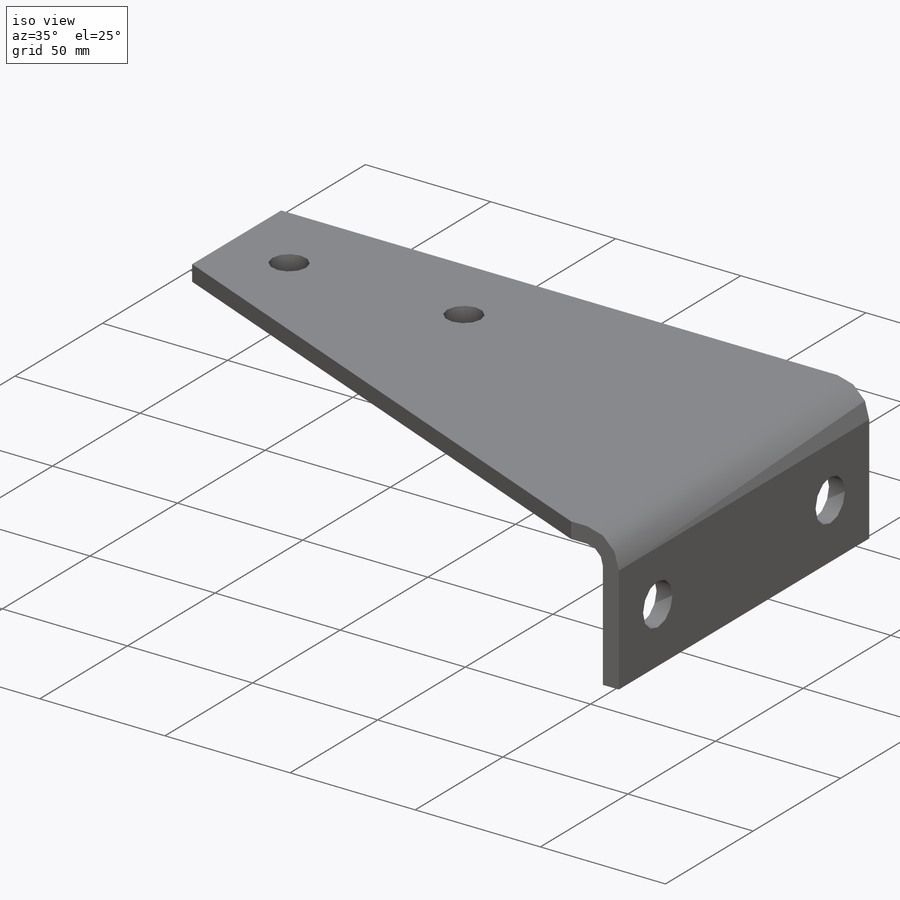
[diagram: iso view]
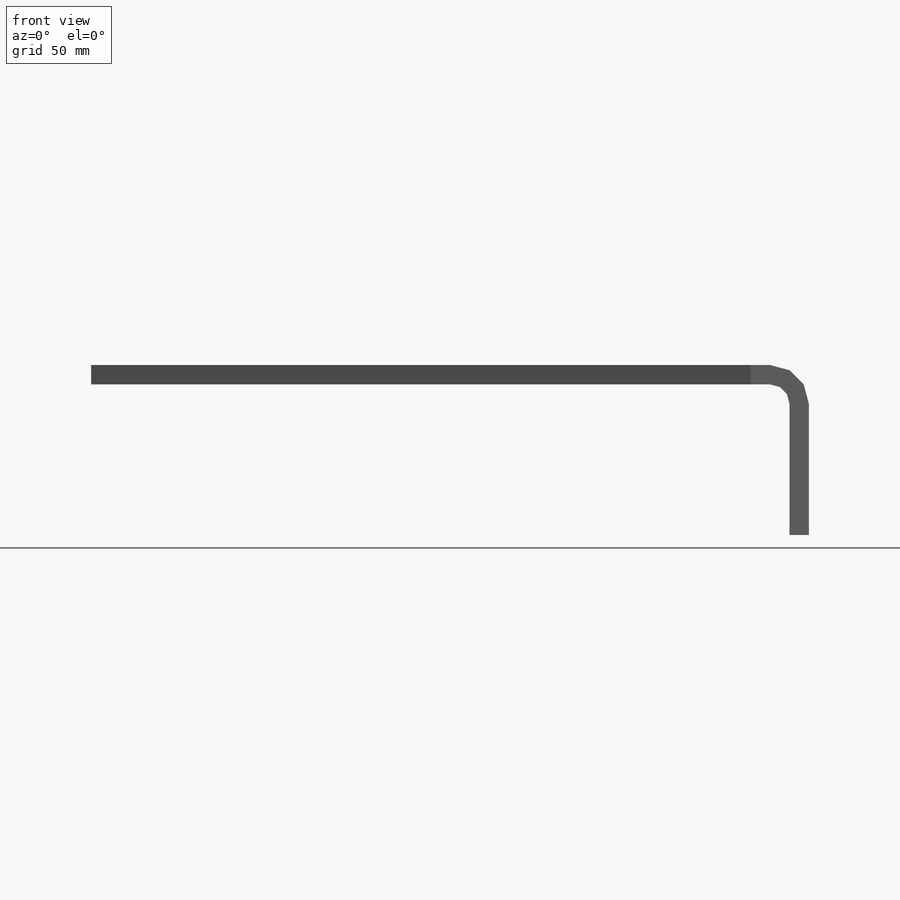
[diagram: front view]
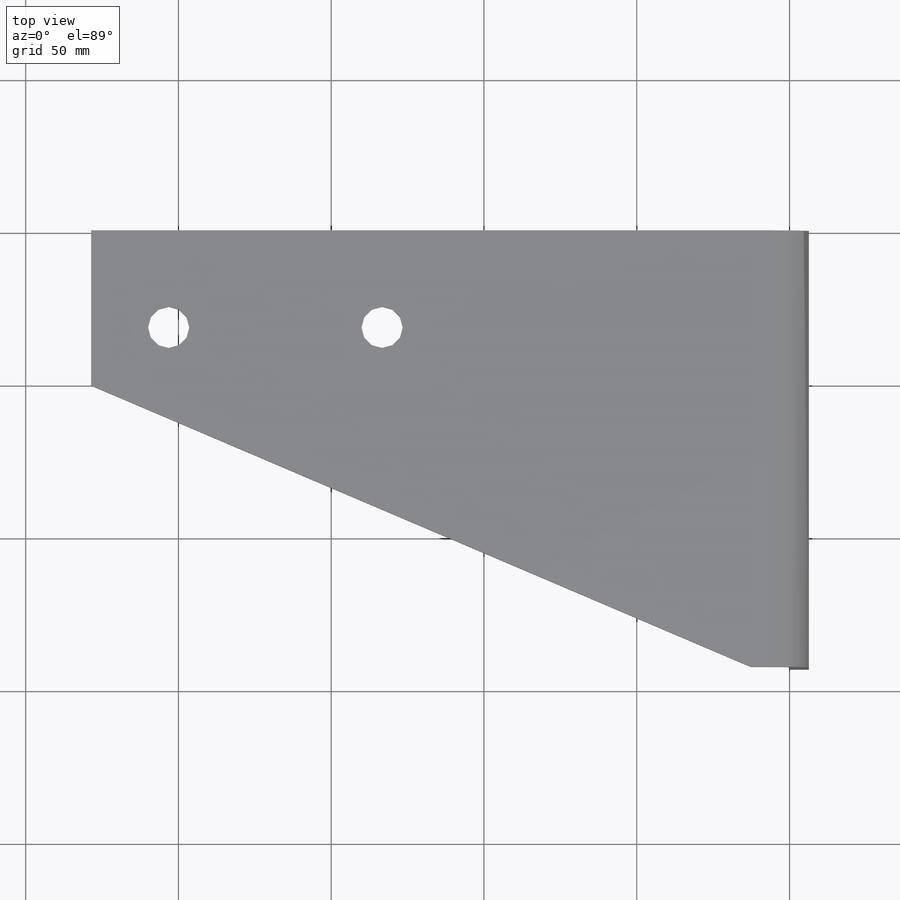
[diagram: top view]
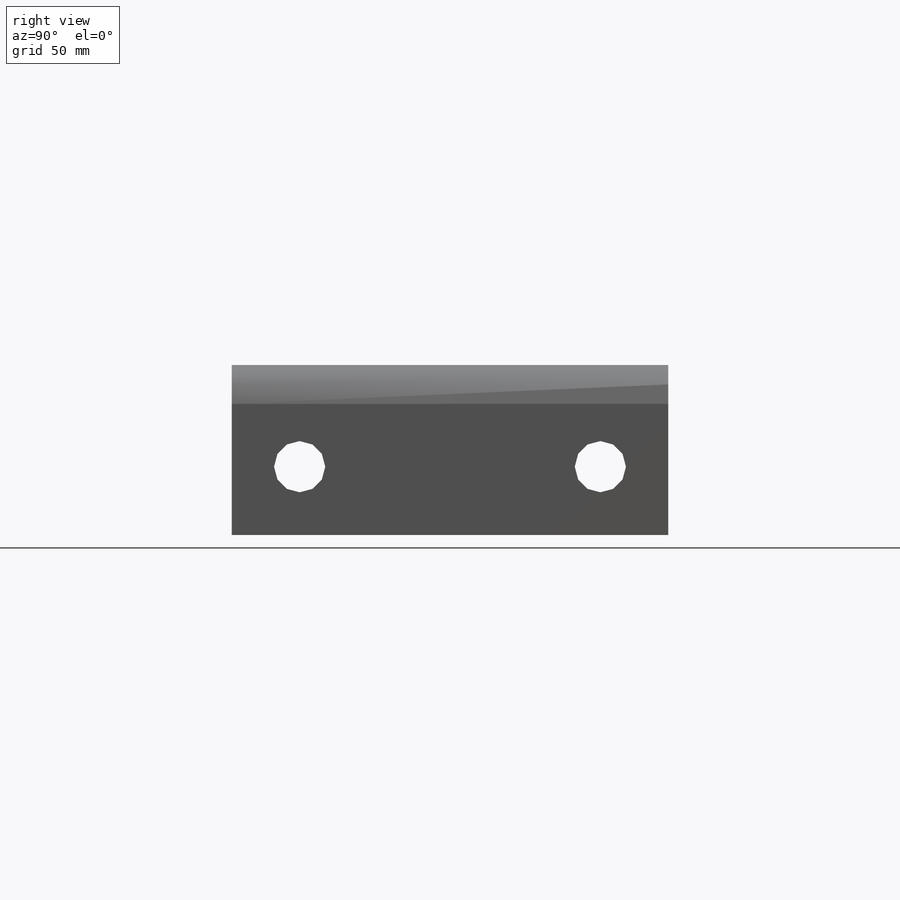
[diagram: right view]
SOLIDWORKS PART (.sldprt)
format: sldprt  version: not decoded by parser v0  size: 385,536 bytes
history: native  units: mm
features: sketch x7, cut_extrude x2, hole x2, material x1, plane x1, mirror x1 (+11 scaffold rows collapsed)
feature tree (25):
  scaffold x11  (default folders/planes/origin — collapsed)
  material  "Material <not specified>"
  plane  "Side"
  sketch  "Sketch1"  dims[c1.D3=6.35mm c1.D1=228.6mm c1.D2=49.276mm c2.D1=142.875mm c2.D5=6.35mm c2.D6=1.0mm c2.D7=5.0mm]
  sketch  "Sketch2"  dims[c1.D1=66.548mm c1.D2=177.8mm c2.D1=19.05mm c2.D2=~58.38825mm]
  cut_extrude  "Cut cnr"  [1 undecoded]
  hole  "Hole-flg"  Diameter=16.764mm Depth=234.95mm
  sketch  "Sketch5"  dims[c1.D1=33.3375mm c1.D2=31.75mm c1.D3=98.425mm c2.D2=22.225mm c2.D1=33.274mm]
  sketch  "Sketch4"  dims[Diameter=16.764mm Depth=234.95mm]
  hole  "Hole-top"  Diameter=13.49375mm Depth=25.4mm
  sketch  "Sketch9"  dims[D1=63.5mm]
  sketch  "Sketch8"  dims[Diameter=~13.49375mm Depth=25.4mm]
  mirror  "Mirror All1"
  sketch  "Sketch10"
  cut_extrude  "Cut-lh"  [1 undecoded]
decode coverage: 8 of 12 modeling features carry decoded parameters
note: ~ marks probable driven/reference dimensions
note: 2 parameter values undecoded
note: suppression state not decoded; provenance and decode notes live in map.json
